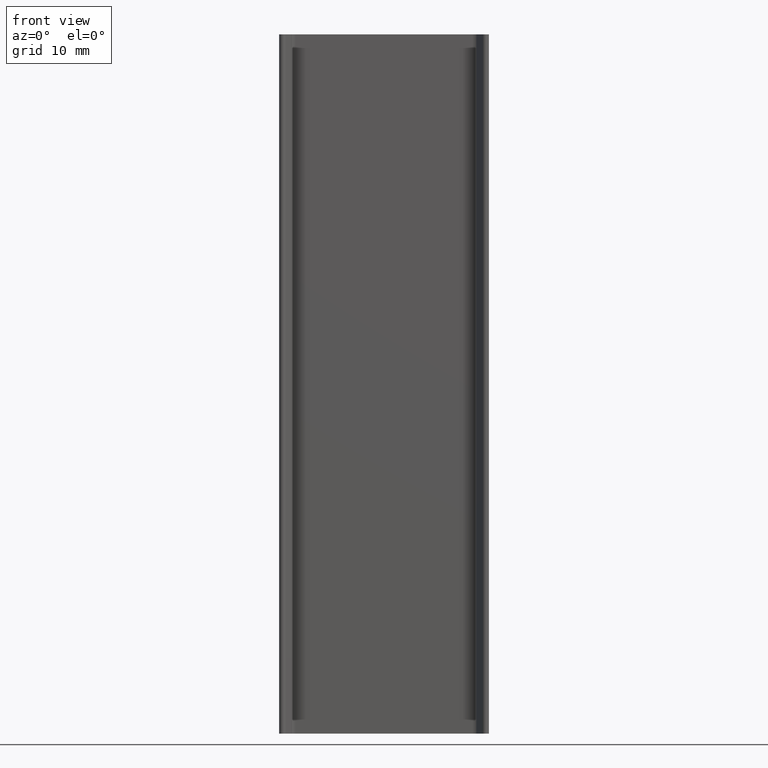
[diagram: clean part render]
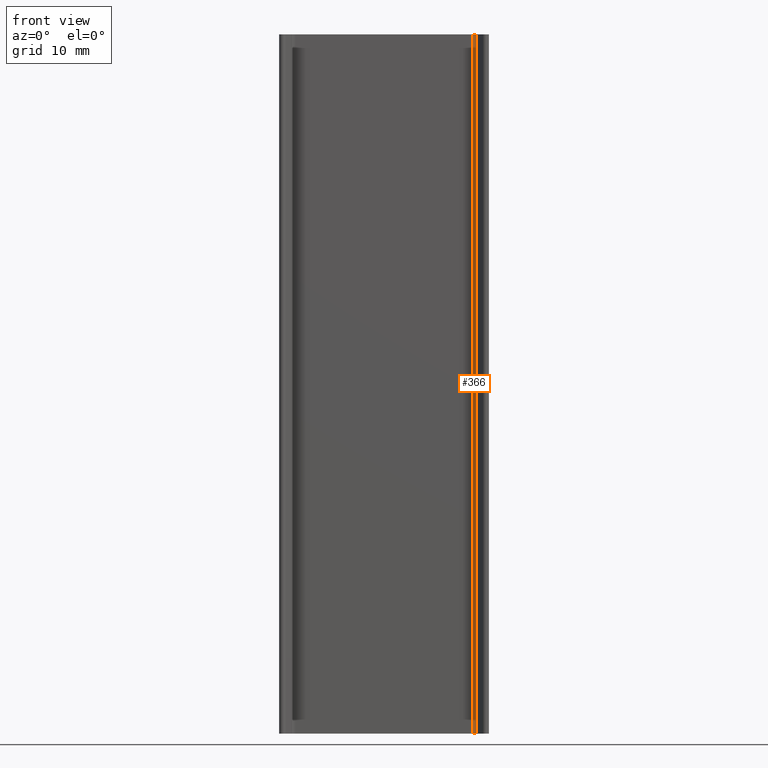
[diagram: same view with one face highlighted and labeled with its STEP entity id]
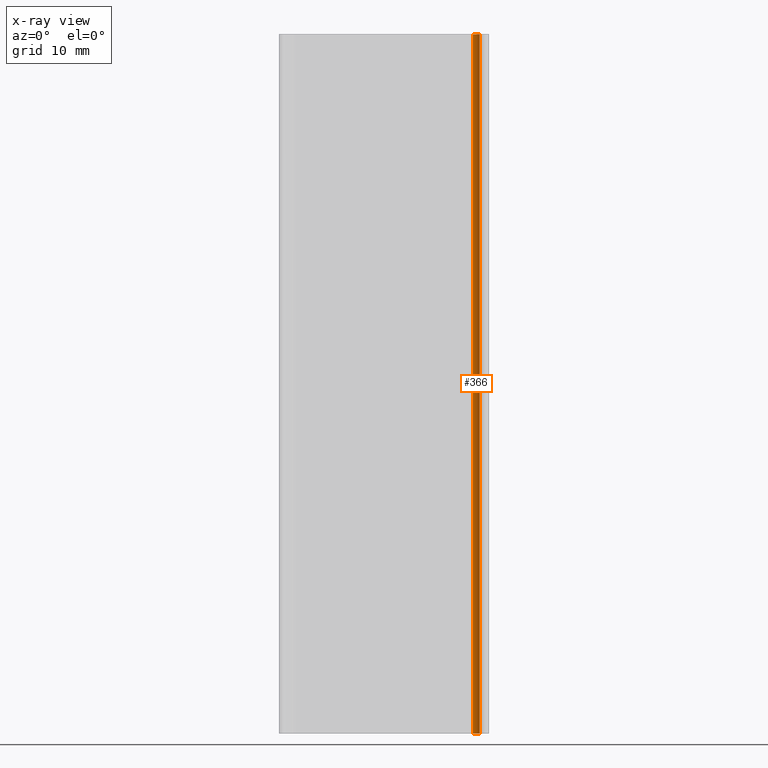
[diagram: x-ray of the same camera — body ghosted, the highlighted face saturated]
A machine part, front view. The second image highlights one B-rep face of the part: STEP entity #366.
The next image is the same camera in x-ray: the body ghosted, the highlighted face saturated — about 0% of this face is hidden behind the body in this view.
In plain terms, the highlighted cylindrical surface (edge-blend (fillet) strip) has radius 1 mm, axis along (0, 0, 1).
Its self-contained STEP definition (entity closure, byte-faithful):
#15=CIRCLE('',#389,1.);
#16=CIRCLE('',#390,1.);
#31=CYLINDRICAL_SURFACE('',#388,1.);
#40=FACE_OUTER_BOUND('',#60,.T.);
#60=EDGE_LOOP('',(#249,#250,#251,#252));
#82=LINE('',#544,#120);
#83=LINE('',#550,#121);
#120=VECTOR('',#430,100.);
#121=VECTOR('',#437,100.);
#156=VERTEX_POINT('',#538);
#158=VERTEX_POINT('',#542);
#159=VERTEX_POINT('',#546);
#160=VERTEX_POINT('',#548);
#194=EDGE_CURVE('',#158,#156,#82,.T.);
#195=EDGE_CURVE('',#156,#159,#15,.T.);
#196=EDGE_CURVE('',#160,#158,#16,.T.);
#197=EDGE_CURVE('',#160,#159,#83,.T.);
#249=ORIENTED_EDGE('',*,*,#195,.F.);
#250=ORIENTED_EDGE('',*,*,#194,.F.);
#251=ORIENTED_EDGE('',*,*,#196,.F.);
#252=ORIENTED_EDGE('',*,*,#197,.T.);
#366=ADVANCED_FACE('',(#40),#31,.F.);
#388=AXIS2_PLACEMENT_3D('',#545,#431,#432);
#389=AXIS2_PLACEMENT_3D('',#547,#433,#434);
#390=AXIS2_PLACEMENT_3D('',#549,#435,#436);
#430=DIRECTION('',(0.,0.,1.));
#431=DIRECTION('center_axis',(0.,0.,1.));
#432=DIRECTION('ref_axis',(1.,0.,0.));
#433=DIRECTION('center_axis',(0.,0.,-1.));
#434=DIRECTION('ref_axis',(1.,0.,0.));
#435=DIRECTION('center_axis',(0.,0.,1.));
#436=DIRECTION('ref_axis',(1.,0.,0.));
#437=DIRECTION('',(0.,0.,1.));
#538=CARTESIAN_POINT('',(12.6999999999992,-1.29999999999998,100.));
#542=CARTESIAN_POINT('',(12.6999999999992,-1.29999999999998,0.));
#544=CARTESIAN_POINT('',(12.6999999999992,-1.29999999999998,0.));
#545=CARTESIAN_POINT('Origin',(12.6999999999992,-2.29999999999998,0.));
#546=CARTESIAN_POINT('',(13.6999999999992,-2.29999999999998,100.));
#547=CARTESIAN_POINT('Origin',(12.6999999999992,-2.29999999999998,100.));
#548=CARTESIAN_POINT('',(13.6999999999992,-2.29999999999998,0.));
#549=CARTESIAN_POINT('Origin',(12.6999999999992,-2.29999999999998,0.));
#550=CARTESIAN_POINT('',(13.6999999999992,-2.29999999999998,0.));